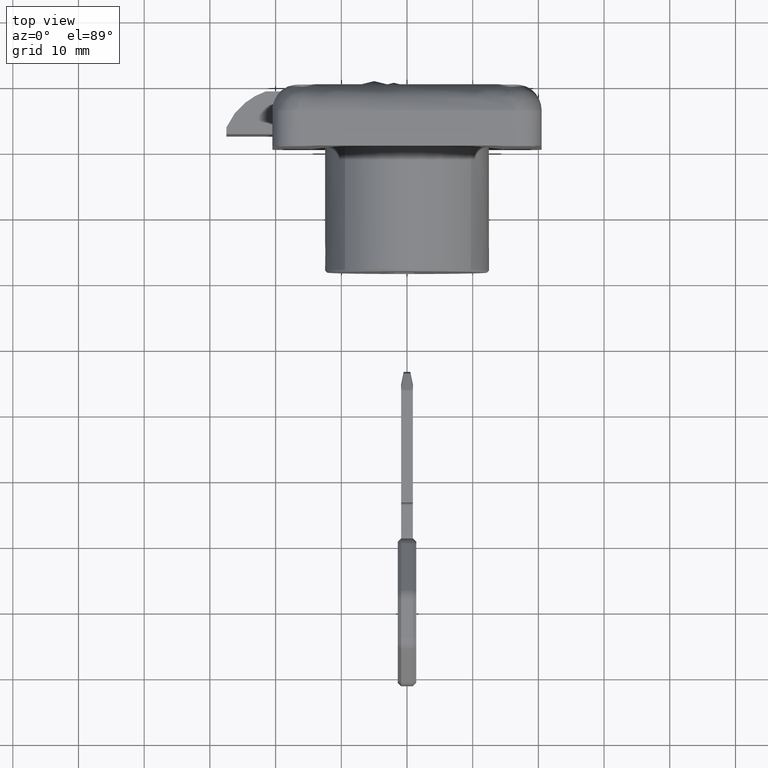
[diagram: clean part render]
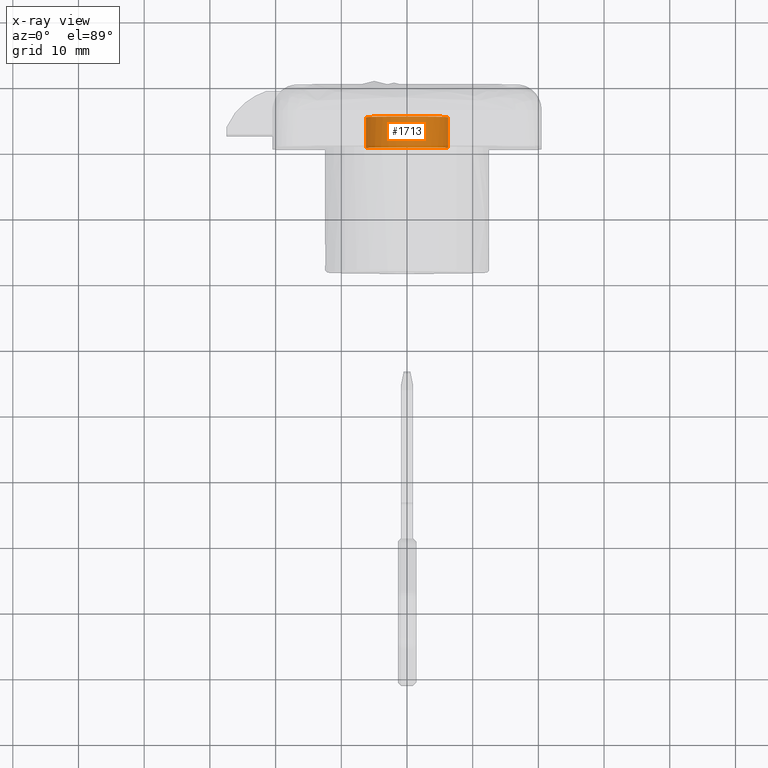
[diagram: x-ray — body ghosted, one internal face saturated and labeled with its STEP entity id]
A machine part, top view, then the same camera in x-ray: the body is ghosted and one INTERNAL B-rep face — a face not visible from any outside direction — is saturated and labeled: STEP entity #1713.
In plain terms, the highlighted face is a freeform B-spline surface patch.
Its self-contained STEP definition (entity closure, byte-faithful):
#1546=CARTESIAN_POINT('',(-6.201663836406496,-4.699999999984209,-3.775800012977645));
#1547=VERTEX_POINT('',#1546);
#1563=CARTESIAN_POINT('',(6.249762019148678,-4.699999999984210,-2.945459152814864));
#1564=VERTEX_POINT('',#1563);
#1580=CARTESIAN_POINT('',(6.249762019148897,-9.399999999984800,-2.945459152839963));
#1581=VERTEX_POINT('',#1580);
#1582=CARTESIAN_POINT('',(6.249762019148678,-4.699999999984210,-2.945459152814864));
#1583=CARTESIAN_POINT('',(6.249762019148897,-9.399999999984800,-2.945459152839963));
#1584=QUASI_UNIFORM_CURVE('',1,(#1582,#1583),.UNSPECIFIED.,.F.,.U.);
#1585=EDGE_CURVE('',#1564,#1581,#1584,.T.);
#1604=CARTESIAN_POINT('',(-6.201664862701973,-9.399999999984800,-3.775791808791250));
#1605=VERTEX_POINT('',#1604);
#1619=CARTESIAN_POINT('',(-6.201663836406496,-4.699999999984209,-3.775800012977645));
#1620=CARTESIAN_POINT('',(-6.201664862701973,-9.399999999984800,-3.775791808791250));
#1621=QUASI_UNIFORM_CURVE('',1,(#1619,#1620),.UNSPECIFIED.,.F.,.U.);
#1622=EDGE_CURVE('',#1547,#1605,#1621,.T.);
#1627=CARTESIAN_POINT('',(6.249762019151069,-4.582499999984194,-2.945459153088923));
#1628=CARTESIAN_POINT('',(6.195221172286232,-4.582499999984194,3.304302866062145));
#1629=CARTESIAN_POINT('',(-0.054540846864837,-4.582499999984194,3.249762019197309));
#1630=CARTESIAN_POINT('',(-6.304302866015906,-4.582499999984194,3.195221172332472));
#1631=CARTESIAN_POINT('',(-6.249762019151069,-4.582499999984194,-3.054540846818597));
#1632=CARTESIAN_POINT('',(-6.246602695376723,-4.582499999984194,-3.416563493442345));
#1633=CARTESIAN_POINT('',(-6.201663836409617,-4.582499999984194,-3.775800012952694));
#1634=CARTESIAN_POINT('',(6.249762019151069,-9.520437499984816,-2.945459153088923));
#1635=CARTESIAN_POINT('',(6.195221172286232,-9.520437499984816,3.304302866062145));
#1636=CARTESIAN_POINT('',(-0.054540846864837,-9.520437499984816,3.249762019197309));
#1637=CARTESIAN_POINT('',(-6.304302866015906,-9.520437499984816,3.195221172332472));
#1638=CARTESIAN_POINT('',(-6.249762019151069,-9.520437499984816,-3.054540846818597));
#1639=CARTESIAN_POINT('',(-6.246602695376723,-9.520437499984814,-3.416563493442345));
#1640=CARTESIAN_POINT('',(-6.201663836409617,-9.520437499984814,-3.775800012952694));
#1648=(BOUNDED_SURFACE()B_SPLINE_SURFACE(2,1,((#1627,#1634),(#1628,#1635),(#1629,#1636),(#1630,#1637),(#1631,#1638),(#1632,#1639),(#1633,#1640)),.UNSPECIFIED.,.F.,.F.,.U.)B_SPLINE_SURFACE_WITH_KNOTS((3,2,2,3),(2,2),(0.0,10.355339059327370,20.710678118654752,21.539105243400940),(0.0,4.937937500000621),.UNSPECIFIED.)GEOMETRIC_REPRESENTATION_ITEM()RATIONAL_B_SPLINE_SURFACE(((1.0,1.0),(0.707106781186548,0.707106781186548),(1.0,1.0),(0.707106781186548,0.707106781186548),(1.0,1.0),(0.976568542494924,0.976568542494924),(0.956886118190660,0.956886118190660)))REPRESENTATION_ITEM('')SURFACE());
#1649=CARTESIAN_POINT('',(0.0,-4.699999999984210,3.250000000046240));
#1650=VERTEX_POINT('',#1649);
#1651=CARTESIAN_POINT('',(0.0,-4.699999999984210,3.250000000046240));
#1652=CARTESIAN_POINT('',(-6.249999999999999,-4.699999999984210,3.250000000046240));
#1653=CARTESIAN_POINT('',(-6.250000000000000,-4.699999999984210,-2.999999999953760));
#1654=CARTESIAN_POINT('',(-6.250000000000002,-4.699999999984211,-3.389405797063360));
#1655=CARTESIAN_POINT('',(-6.201663836406496,-4.699999999984209,-3.775800012977645));
#1663=(BOUNDED_CURVE()B_SPLINE_CURVE(2,(#1651,#1652,#1653,#1654,#1655),.UNSPECIFIED.,.F.,.U.)B_SPLINE_CURVE_WITH_KNOTS((3,2,3),(0.500000000000000,0.750000000000000,0.771473928972059),.UNSPECIFIED.)CURVE()GEOMETRIC_REPRESENTATION_ITEM()RATIONAL_B_SPLINE_CURVE((1.0,0.707106781186547,1.0,0.974841727291209,0.954005430272083))REPRESENTATION_ITEM(''));
#1664=EDGE_CURVE('',#1650,#1547,#1663,.T.);
#1665=ORIENTED_EDGE('',*,*,#1664,.T.);
#1666=ORIENTED_EDGE('',*,*,#1622,.T.);
#1667=CARTESIAN_POINT('',(0.0,-9.399999999984798,3.250000000046240));
#1668=VERTEX_POINT('',#1667);
#1669=CARTESIAN_POINT('',(-6.201664862701973,-9.399999999984800,-3.775791808791250));
#1670=CARTESIAN_POINT('',(-6.250000000000001,-9.399999999984798,-3.389401646938362));
#1671=CARTESIAN_POINT('',(-6.250000000000000,-9.399999999984798,-2.999999999953760));
#1672=CARTESIAN_POINT('',(-6.249999999999999,-9.399999999984798,3.250000000046240));
#1673=CARTESIAN_POINT('',(0.0,-9.399999999984798,3.250000000046240));
#1681=(BOUNDED_CURVE()B_SPLINE_CURVE(2,(#1669,#1670,#1671,#1672,#1673),.UNSPECIFIED.,.F.,.U.)B_SPLINE_CURVE_WITH_KNOTS((3,2,3),(0.728526294130475,0.750000000000000,1.0),.UNSPECIFIED.)CURVE()GEOMETRIC_REPRESENTATION_ITEM()RATIONAL_B_SPLINE_CURVE((0.954005863228315,0.974841988672086,1.0,0.707106781186547,1.0))REPRESENTATION_ITEM(''));
#1682=EDGE_CURVE('',#1605,#1668,#1681,.T.);
#1683=ORIENTED_EDGE('',*,*,#1682,.T.);
#1684=CARTESIAN_POINT('',(0.0,-9.399999999984798,3.250000000046240));
#1685=CARTESIAN_POINT('',(6.195695065724982,-9.399999999984798,3.250000000046240));
#1686=CARTESIAN_POINT('',(6.249762019148897,-9.399999999984800,-2.945459152839963));
#1694=(BOUNDED_CURVE()B_SPLINE_CURVE(2,(#1684,#1685,#1686),.UNSPECIFIED.,.F.,.U.)B_SPLINE_CURVE_WITH_KNOTS((3,3),(0.0,0.248460105650980),.UNSPECIFIED.)CURVE()GEOMETRIC_REPRESENTATION_ITEM()RATIONAL_B_SPLINE_CURVE((1.0,0.708910879636616,0.996414028067929))REPRESENTATION_ITEM(''));
#1695=EDGE_CURVE('',#1668,#1581,#1694,.T.);
#1696=ORIENTED_EDGE('',*,*,#1695,.T.);
#1697=ORIENTED_EDGE('',*,*,#1585,.F.);
#1698=CARTESIAN_POINT('',(6.249762019148678,-4.699999999984210,-2.945459152814864));
#1699=CARTESIAN_POINT('',(6.195695065675220,-4.699999999984210,3.250000000046241));
#1700=CARTESIAN_POINT('',(0.0,-4.699999999984210,3.250000000046240));
#1708=(BOUNDED_CURVE()B_SPLINE_CURVE(2,(#1698,#1699,#1700),.UNSPECIFIED.,.F.,.U.)B_SPLINE_CURVE_WITH_KNOTS((3,3),(0.251539894350435,0.500000000000000),.UNSPECIFIED.)CURVE()GEOMETRIC_REPRESENTATION_ITEM()RATIONAL_B_SPLINE_CURVE((0.996414028064655,0.708910879638274,1.0))REPRESENTATION_ITEM(''));
#1709=EDGE_CURVE('',#1564,#1650,#1708,.T.);
#1710=ORIENTED_EDGE('',*,*,#1709,.T.);
#1711=EDGE_LOOP('',(#1665,#1666,#1683,#1696,#1697,#1710));
#1712=FACE_OUTER_BOUND('',#1711,.T.);
#1713=ADVANCED_FACE('',(#1712),#1648,.T.);